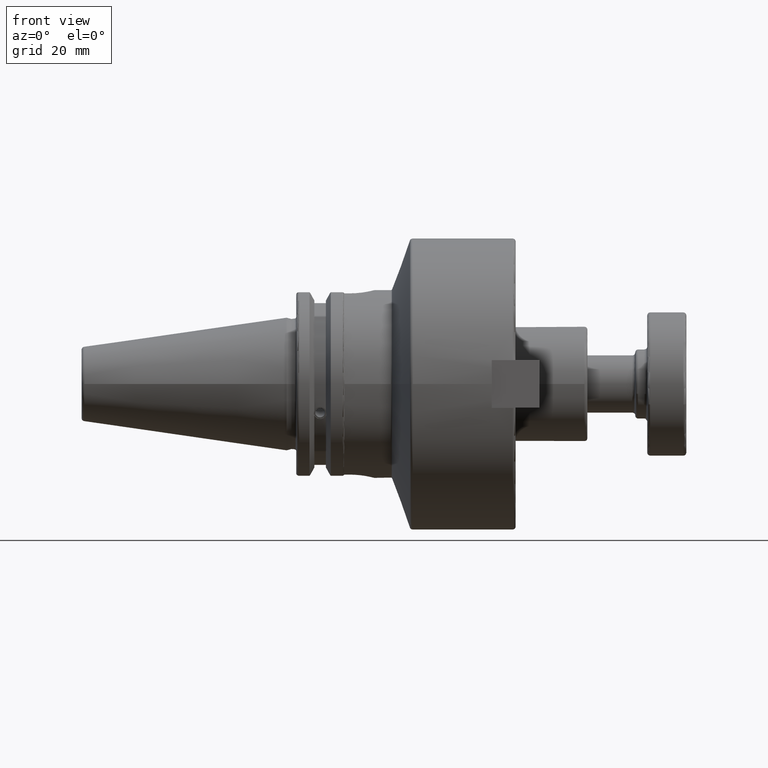
[diagram: clean part render]
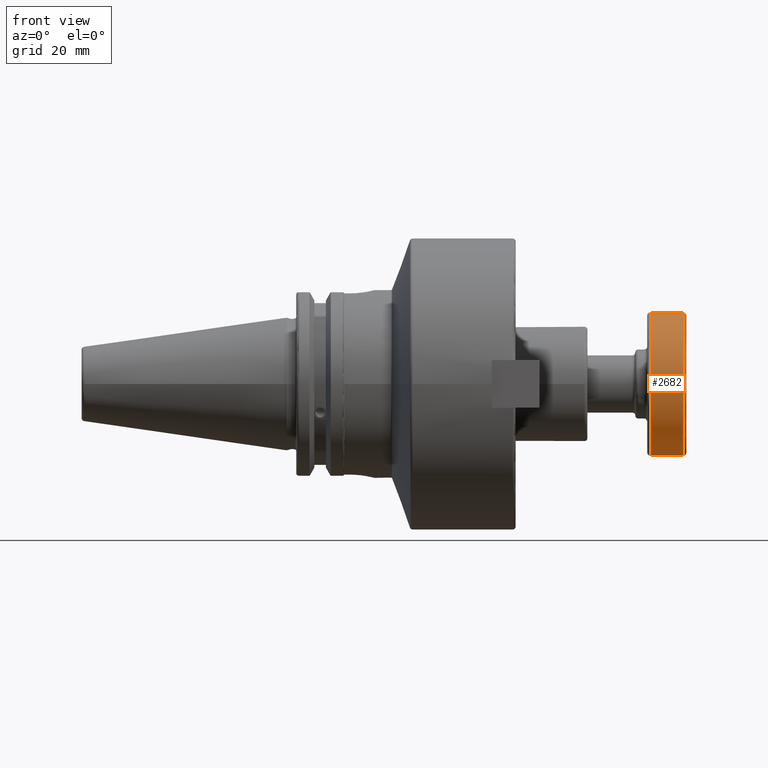
[diagram: same view with one face highlighted and labeled with its STEP entity id]
A machine part, front view. The second image highlights one B-rep face of the part: STEP entity #2682.
In plain terms, the highlighted cylindrical surface (bore or boss wall) has radius 23.85 mm, axis along (-1, 0, -0).
Its self-contained STEP definition (entity closure, byte-faithful):
#158=CYLINDRICAL_SURFACE('',#3099,23.85);
#341=CIRCLE('',#3097,23.85);
#342=CIRCLE('',#3098,23.85);
#343=CIRCLE('',#3100,23.85);
#344=CIRCLE('',#3101,23.85);
#496=FACE_OUTER_BOUND('',#671,.T.);
#671=EDGE_LOOP('',(#2447,#2448,#2449,#2450,#2451,#2452));
#837=LINE('',#5145,#1000);
#1000=VECTOR('',#3902,23.85);
#1293=VERTEX_POINT('',#5138);
#1294=VERTEX_POINT('',#5140);
#1295=VERTEX_POINT('',#5144);
#1296=VERTEX_POINT('',#5146);
#1680=EDGE_CURVE('',#1293,#1294,#341,.T.);
#1681=EDGE_CURVE('',#1294,#1293,#342,.T.);
#1682=EDGE_CURVE('',#1294,#1295,#837,.T.);
#1683=EDGE_CURVE('',#1296,#1295,#343,.T.);
#1684=EDGE_CURVE('',#1295,#1296,#344,.T.);
#2447=ORIENTED_EDGE('',*,*,#1681,.F.);
#2448=ORIENTED_EDGE('',*,*,#1682,.T.);
#2449=ORIENTED_EDGE('',*,*,#1683,.F.);
#2450=ORIENTED_EDGE('',*,*,#1684,.F.);
#2451=ORIENTED_EDGE('',*,*,#1682,.F.);
#2452=ORIENTED_EDGE('',*,*,#1680,.F.);
#2682=ADVANCED_FACE('',(#496),#158,.T.);
#3097=AXIS2_PLACEMENT_3D('',#5141,#3896,#3897);
#3098=AXIS2_PLACEMENT_3D('',#5142,#3898,#3899);
#3099=AXIS2_PLACEMENT_3D('',#5143,#3900,#3901);
#3100=AXIS2_PLACEMENT_3D('',#5147,#3903,#3904);
#3101=AXIS2_PLACEMENT_3D('',#5148,#3905,#3906);
#3896=DIRECTION('center_axis',(1.,0.,0.));
#3897=DIRECTION('ref_axis',(0.,-1.,1.83697019872103E-16));
#3898=DIRECTION('center_axis',(1.,0.,0.));
#3899=DIRECTION('ref_axis',(0.,-1.,1.83697019872103E-16));
#3900=DIRECTION('center_axis',(1.,0.,0.));
#3901=DIRECTION('ref_axis',(0.,1.,0.));
#3902=DIRECTION('',(-1.,0.,0.));
#3903=DIRECTION('center_axis',(-1.,0.,0.));
#3904=DIRECTION('ref_axis',(0.,-1.,1.83697019872103E-16));
#3905=DIRECTION('center_axis',(-1.,0.,0.));
#3906=DIRECTION('ref_axis',(0.,-1.,1.83697019872103E-16));
#5138=CARTESIAN_POINT('',(12.,-2.92078261596644E-15,23.85));
#5140=CARTESIAN_POINT('',(12.,-23.85,-2.92078261596644E-15));
#5141=CARTESIAN_POINT('Origin',(12.,0.,0.));
#5142=CARTESIAN_POINT('Origin',(12.,0.,0.));
#5143=CARTESIAN_POINT('Origin',(6.5,0.,0.));
#5144=CARTESIAN_POINT('',(1.,-23.85,-2.92078261596644E-15));
#5145=CARTESIAN_POINT('',(6.5,-23.85,-2.92078261596644E-15));
#5146=CARTESIAN_POINT('',(1.,-2.92078261596644E-15,23.85));
#5147=CARTESIAN_POINT('Origin',(1.,0.,0.));
#5148=CARTESIAN_POINT('Origin',(1.,0.,0.));